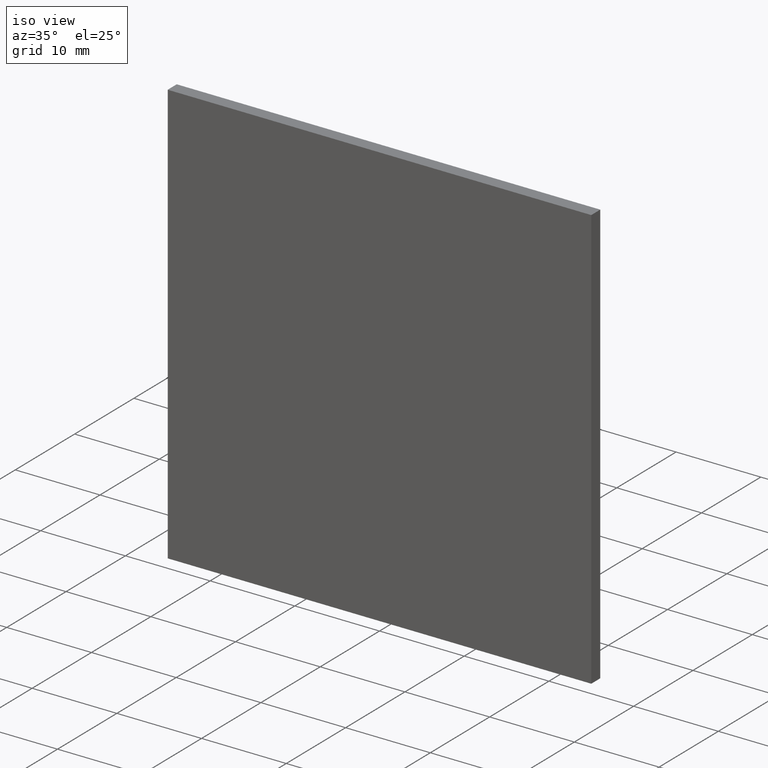
[diagram: clean part render]
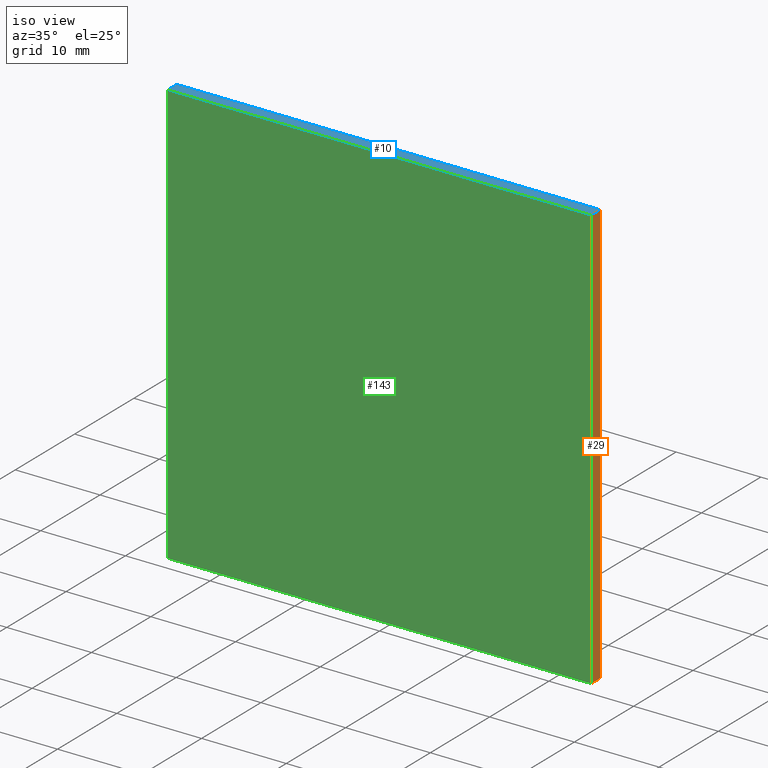
[diagram: same view with three faces highlighted in distinct colors, each labeled with its STEP entity id]
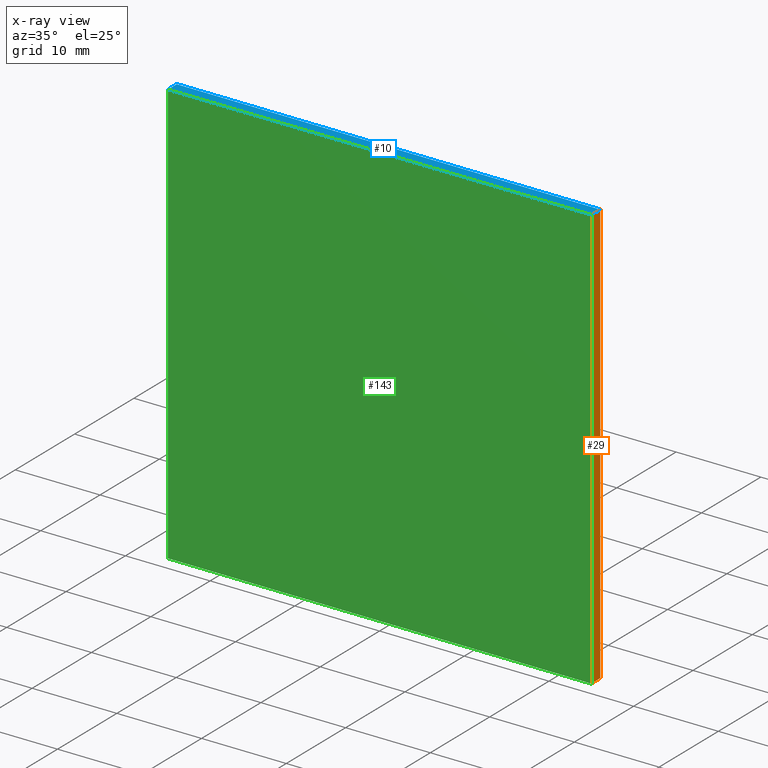
[diagram: x-ray of the same camera — body ghosted, the three highlighted faces saturated]
A machine part, iso view with three faces highlighted in distinct colors.
The next image is the same camera in x-ray (body ghosted, the three faces saturated) — at least one of them is partly hidden behind the body in this view.
Their STEP definitions:

[orange] entity #29 — the highlighted planar face has unit normal (-1, 0, 0).
#9 = CARTESIAN_POINT ( 'NONE',  ( 25.00000000000000700, 1.520000000000000000, 24.99999999999999600 ) ) ;
#14 = ORIENTED_EDGE ( 'NONE', *, *, #57, .T. ) ;
#19 = DIRECTION ( 'NONE',  ( 0.0000000000000000000, 0.0000000000000000000, -1.000000000000000000 ) ) ;
#20 = CARTESIAN_POINT ( 'NONE',  ( 25.00000000000000700, 0.0000000000000000000, -25.00000000000000400 ) ) ;
#29 = ADVANCED_FACE ( 'NONE', ( #62 ), #129, .F. ) ;
#31 = VERTEX_POINT ( 'NONE', #43 ) ;
#42 = VECTOR ( 'NONE', #19, 1000.000000000000000 ) ;
#43 = CARTESIAN_POINT ( 'NONE',  ( 25.00000000000000700, 1.520000000000000000, 24.99999999999999600 ) ) ;
#44 = VERTEX_POINT ( 'NONE', #190 ) ;
#57 = EDGE_CURVE ( 'NONE', #44, #148, #128, .T. ) ;
#58 = DIRECTION ( 'NONE',  ( 0.0000000000000000000, 0.0000000000000000000, -1.000000000000000000 ) ) ;
#62 = FACE_OUTER_BOUND ( 'NONE', #179, .T. ) ;
#73 = CARTESIAN_POINT ( 'NONE',  ( 25.00000000000000700, 1.520000000000000000, -25.00000000000000400 ) ) ;
#78 = LINE ( 'NONE', #73, #175 ) ;
#79 = CARTESIAN_POINT ( 'NONE',  ( 25.00000000000000700, 0.0000000000000000000, 24.99999999999999600 ) ) ;
#81 = LINE ( 'NONE', #186, #185 ) ;
#82 = EDGE_CURVE ( 'NONE', #31, #176, #84, .T. ) ;
#83 = ORIENTED_EDGE ( 'NONE', *, *, #178, .T. ) ;
#84 = LINE ( 'NONE', #137, #95 ) ;
#93 = DIRECTION ( 'NONE',  ( 0.0000000000000000000, 0.0000000000000000000, 1.000000000000000000 ) ) ;
#95 = VECTOR ( 'NONE', #58, 1000.000000000000000 ) ;
#105 = AXIS2_PLACEMENT_3D ( 'NONE', #9, #118, #93 ) ;
#112 = DIRECTION ( 'NONE',  ( -0.0000000000000000000, -1.000000000000000000, -0.0000000000000000000 ) ) ;
#118 = DIRECTION ( 'NONE',  ( -1.000000000000000000, 0.0000000000000000000, 0.0000000000000000000 ) ) ;
#128 = LINE ( 'NONE', #79, #42 ) ;
#129 = PLANE ( 'NONE',  #105 ) ;
#137 = CARTESIAN_POINT ( 'NONE',  ( 25.00000000000000700, 1.520000000000000000, 24.99999999999999600 ) ) ;
#138 = CARTESIAN_POINT ( 'NONE',  ( 25.00000000000000700, 1.520000000000000000, -25.00000000000000400 ) ) ;
#148 = VERTEX_POINT ( 'NONE', #20 ) ;
#155 = DIRECTION ( 'NONE',  ( -0.0000000000000000000, -1.000000000000000000, -0.0000000000000000000 ) ) ;
#168 = EDGE_CURVE ( 'NONE', #176, #148, #78, .T. ) ;
#175 = VECTOR ( 'NONE', #155, 1000.000000000000000 ) ;
#176 = VERTEX_POINT ( 'NONE', #138 ) ;
#178 = EDGE_CURVE ( 'NONE', #31, #44, #81, .T. ) ;
#179 = EDGE_LOOP ( 'NONE', ( #14, #189, #192, #83 ) ) ;
#185 = VECTOR ( 'NONE', #112, 1000.000000000000000 ) ;
#186 = CARTESIAN_POINT ( 'NONE',  ( 25.00000000000000700, 1.520000000000000000, 24.99999999999999600 ) ) ;
#189 = ORIENTED_EDGE ( 'NONE', *, *, #168, .F. ) ;
#190 = CARTESIAN_POINT ( 'NONE',  ( 25.00000000000000700, 0.0000000000000000000, 24.99999999999999600 ) ) ;
#192 = ORIENTED_EDGE ( 'NONE', *, *, #82, .F. ) ;

[blue] entity #10 — the highlighted planar face has unit normal (0, 0, -1).
#4 = LINE ( 'NONE', #97, #154 ) ;
#5 = DIRECTION ( 'NONE',  ( 0.0000000000000000000, 0.0000000000000000000, -1.000000000000000000 ) ) ;
#7 = VECTOR ( 'NONE', #13, 1000.000000000000000 ) ;
#10 = ADVANCED_FACE ( 'NONE', ( #160 ), #32, .F. ) ;
#13 = DIRECTION ( 'NONE',  ( 1.000000000000000000, 0.0000000000000000000, 0.0000000000000000000 ) ) ;
#22 = DIRECTION ( 'NONE',  ( 1.000000000000000000, 0.0000000000000000000, 0.0000000000000000000 ) ) ;
#27 = DIRECTION ( 'NONE',  ( -1.000000000000000000, 0.0000000000000000000, -0.0000000000000000000 ) ) ;
#30 = CARTESIAN_POINT ( 'NONE',  ( -24.99999999999999300, 1.520000000000000000, 24.99999999999999600 ) ) ;
#31 = VERTEX_POINT ( 'NONE', #43 ) ;
#32 = PLANE ( 'NONE',  #139 ) ;
#43 = CARTESIAN_POINT ( 'NONE',  ( 25.00000000000000700, 1.520000000000000000, 24.99999999999999600 ) ) ;
#44 = VERTEX_POINT ( 'NONE', #190 ) ;
#52 = EDGE_CURVE ( 'NONE', #120, #31, #141, .T. ) ;
#65 = ORIENTED_EDGE ( 'NONE', *, *, #106, .T. ) ;
#81 = LINE ( 'NONE', #186, #185 ) ;
#94 = EDGE_LOOP ( 'NONE', ( #182, #127, #158, #65 ) ) ;
#97 = CARTESIAN_POINT ( 'NONE',  ( -24.99999999999999300, 1.520000000000000000, 24.99999999999999600 ) ) ;
#98 = LINE ( 'NONE', #101, #159 ) ;
#101 = CARTESIAN_POINT ( 'NONE',  ( -24.99999999999999300, 0.0000000000000000000, 24.99999999999999600 ) ) ;
#106 = EDGE_CURVE ( 'NONE', #120, #134, #4, .T. ) ;
#112 = DIRECTION ( 'NONE',  ( -0.0000000000000000000, -1.000000000000000000, -0.0000000000000000000 ) ) ;
#119 = CARTESIAN_POINT ( 'NONE',  ( -24.99999999999999300, 1.520000000000000000, 24.99999999999999600 ) ) ;
#120 = VERTEX_POINT ( 'NONE', #149 ) ;
#123 = CARTESIAN_POINT ( 'NONE',  ( -24.99999999999999300, 0.0000000000000000000, 24.99999999999999600 ) ) ;
#127 = ORIENTED_EDGE ( 'NONE', *, *, #178, .F. ) ;
#134 = VERTEX_POINT ( 'NONE', #123 ) ;
#139 = AXIS2_PLACEMENT_3D ( 'NONE', #30, #5, #27 ) ;
#141 = LINE ( 'NONE', #119, #7 ) ;
#149 = CARTESIAN_POINT ( 'NONE',  ( -24.99999999999999300, 1.520000000000000000, 24.99999999999999600 ) ) ;
#154 = VECTOR ( 'NONE', #197, 1000.000000000000000 ) ;
#158 = ORIENTED_EDGE ( 'NONE', *, *, #52, .F. ) ;
#159 = VECTOR ( 'NONE', #22, 1000.000000000000000 ) ;
#160 = FACE_OUTER_BOUND ( 'NONE', #94, .T. ) ;
#178 = EDGE_CURVE ( 'NONE', #31, #44, #81, .T. ) ;
#182 = ORIENTED_EDGE ( 'NONE', *, *, #191, .T. ) ;
#185 = VECTOR ( 'NONE', #112, 1000.000000000000000 ) ;
#186 = CARTESIAN_POINT ( 'NONE',  ( 25.00000000000000700, 1.520000000000000000, 24.99999999999999600 ) ) ;
#190 = CARTESIAN_POINT ( 'NONE',  ( 25.00000000000000700, 0.0000000000000000000, 24.99999999999999600 ) ) ;
#191 = EDGE_CURVE ( 'NONE', #134, #44, #98, .T. ) ;
#197 = DIRECTION ( 'NONE',  ( -0.0000000000000000000, -1.000000000000000000, -0.0000000000000000000 ) ) ;

[green] entity #143 — the highlighted planar face has unit normal (0, -1, 0).
#16 = ORIENTED_EDGE ( 'NONE', *, *, #133, .F. ) ;
#18 = CARTESIAN_POINT ( 'NONE',  ( -24.99999999999999300, 0.0000000000000000000, -25.00000000000000400 ) ) ;
#19 = DIRECTION ( 'NONE',  ( 0.0000000000000000000, 0.0000000000000000000, -1.000000000000000000 ) ) ;
#20 = CARTESIAN_POINT ( 'NONE',  ( 25.00000000000000700, 0.0000000000000000000, -25.00000000000000400 ) ) ;
#22 = DIRECTION ( 'NONE',  ( 1.000000000000000000, 0.0000000000000000000, 0.0000000000000000000 ) ) ;
#33 = CARTESIAN_POINT ( 'NONE',  ( -24.99999999999999300, 0.0000000000000000000, 24.99999999999999600 ) ) ;
#35 = CARTESIAN_POINT ( 'NONE',  ( -24.99999999999999300, 0.0000000000000000000, -25.00000000000000400 ) ) ;
#36 = DIRECTION ( 'NONE',  ( -0.0000000000000000000, -0.0000000000000000000, 1.000000000000000000 ) ) ;
#42 = VECTOR ( 'NONE', #19, 1000.000000000000000 ) ;
#44 = VERTEX_POINT ( 'NONE', #190 ) ;
#49 = FACE_OUTER_BOUND ( 'NONE', #117, .T. ) ;
#57 = EDGE_CURVE ( 'NONE', #44, #148, #128, .T. ) ;
#77 = ORIENTED_EDGE ( 'NONE', *, *, #191, .F. ) ;
#79 = CARTESIAN_POINT ( 'NONE',  ( 25.00000000000000700, 0.0000000000000000000, 24.99999999999999600 ) ) ;
#91 = VERTEX_POINT ( 'NONE', #18 ) ;
#92 = EDGE_CURVE ( 'NONE', #148, #91, #193, .T. ) ;
#98 = LINE ( 'NONE', #101, #159 ) ;
#101 = CARTESIAN_POINT ( 'NONE',  ( -24.99999999999999300, 0.0000000000000000000, 24.99999999999999600 ) ) ;
#109 = DIRECTION ( 'NONE',  ( 0.0000000000000000000, -1.000000000000000000, 0.0000000000000000000 ) ) ;
#117 = EDGE_LOOP ( 'NONE', ( #122, #77, #16, #150 ) ) ;
#121 = CARTESIAN_POINT ( 'NONE',  ( 0.0000000000000000000, 0.0000000000000000000, 0.0000000000000000000 ) ) ;
#122 = ORIENTED_EDGE ( 'NONE', *, *, #57, .F. ) ;
#123 = CARTESIAN_POINT ( 'NONE',  ( -24.99999999999999300, 0.0000000000000000000, 24.99999999999999600 ) ) ;
#124 = DIRECTION ( 'NONE',  ( -1.000000000000000000, -0.0000000000000000000, -0.0000000000000000000 ) ) ;
#125 = LINE ( 'NONE', #33, #174 ) ;
#128 = LINE ( 'NONE', #79, #42 ) ;
#133 = EDGE_CURVE ( 'NONE', #91, #134, #125, .T. ) ;
#134 = VERTEX_POINT ( 'NONE', #123 ) ;
#136 = PLANE ( 'NONE',  #164 ) ;
#143 = ADVANCED_FACE ( 'NONE', ( #49 ), #136, .T. ) ;
#148 = VERTEX_POINT ( 'NONE', #20 ) ;
#150 = ORIENTED_EDGE ( 'NONE', *, *, #92, .F. ) ;
#159 = VECTOR ( 'NONE', #22, 1000.000000000000000 ) ;
#164 = AXIS2_PLACEMENT_3D ( 'NONE', #121, #109, #201 ) ;
#170 = VECTOR ( 'NONE', #124, 1000.000000000000000 ) ;
#174 = VECTOR ( 'NONE', #36, 1000.000000000000000 ) ;
#190 = CARTESIAN_POINT ( 'NONE',  ( 25.00000000000000700, 0.0000000000000000000, 24.99999999999999600 ) ) ;
#191 = EDGE_CURVE ( 'NONE', #134, #44, #98, .T. ) ;
#193 = LINE ( 'NONE', #35, #170 ) ;
#201 = DIRECTION ( 'NONE',  ( 0.0000000000000000000, -0.0000000000000000000, -1.000000000000000000 ) ) ;